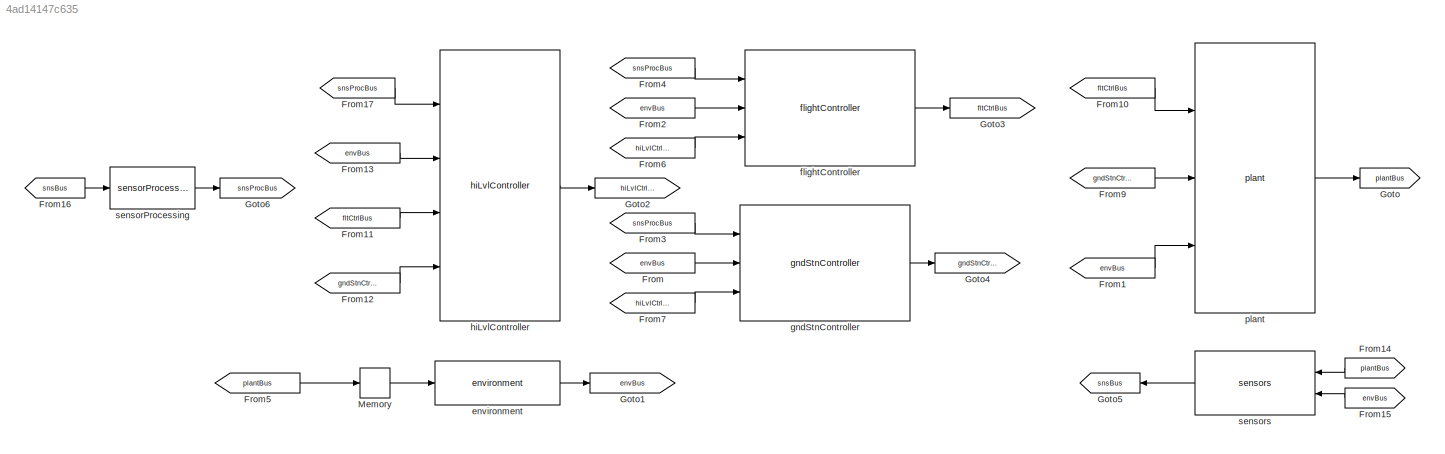
MODEL slx_4ad14147c635
KIND model
CONFIG AbsTol = auto
CONFIG EnableMultiTasking = off
CONFIG FixedStep = auto
CONFIG MaxStep = auto
CONFIG MinStep = auto
CONFIG RelTol = 1e-3
CONFIG SampleTimeConstraint = Unconstrained
CONFIG Solver = ode15s
CONFIG SolverName = ode15s
CONFIG StartTime = 0.0
CONFIG StopTime = duration_s
BLOCK [From] From
  GotoTag = envBus
BLOCK [From] From1
  GotoTag = envBus
BLOCK [From] From10
  GotoTag = fltCtrlBus
BLOCK [From] From11
  GotoTag = fltCtrlBus
BLOCK [From] From12
  GotoTag = gndStnCtrlBus
BLOCK [From] From13
  GotoTag = envBus
BLOCK [From] From14
  GotoTag = plantBus
BLOCK [From] From15
  GotoTag = envBus
BLOCK [From] From16
  GotoTag = snsBus
BLOCK [From] From17
  GotoTag = snsProcBus
BLOCK [From] From2
  GotoTag = envBus
BLOCK [From] From3
  GotoTag = snsProcBus
BLOCK [From] From4
  GotoTag = snsProcBus
BLOCK [From] From5
  GotoTag = plantBus
BLOCK [From] From6
  GotoTag = hiLvlCtrlBus
BLOCK [From] From7
  GotoTag = hiLvlCtrlBus
BLOCK [From] From9
  GotoTag = gndStnCtrlBus
BLOCK [Goto] Goto
  GotoTag = plantBus
BLOCK [Goto] Goto1
  GotoTag = envBus
BLOCK [Goto] Goto2
  GotoTag = hiLvlCtrlBus
BLOCK [Goto] Goto3
  GotoTag = fltCtrlBus
BLOCK [Goto] Goto4
  GotoTag = gndStnCtrlBus
BLOCK [Goto] Goto5
  GotoTag = snsBus
BLOCK [Goto] Goto6
  GotoTag = snsProcBus
BLOCK [Memory] Memory
BLOCK [Reference] environment  REF=environment_cl/environment  (lib defined in slx_47dae840ee41)
  Ports = [1, 1]
  SourceBlock = environment_cl/environment
  SourceType = SubSystem
BLOCK [Reference] flightController  REF=flightController_cl/flightController
  Ports = [3, 1]
  SourceBlock = flightController_cl/flightController
  SourceType = SubSystem
BLOCK [Reference] gndStnController  REF=gndStnController_cl/gndStnController
  Ports = [3, 1]
  SourceBlock = gndStnController_cl/gndStnController
  SourceType = SubSystem
BLOCK [Reference] hiLvlController  REF=hiLvlController_cl/hiLvlController
  Ports = [4, 1]
  SourceBlock = hiLvlController_cl/hiLvlController
  SourceType = SubSystem
BLOCK [Reference] plant  REF=plant_cl/plant  (lib defined in slx_16586b0fd0ad)
  Ports = [3, 1]
  SourceBlock = plant_cl/plant
  SourceType = SubSystem
BLOCK [Reference] sensorProcessing  REF=sensorProcessing_cl/sensorProcessing
  Ports = [1, 1]
  SourceBlock = sensorProcessing_cl/sensorProcessing
  SourceType = SubSystem
BLOCK [Reference] sensors  REF=sensors_cl/sensors
  Ports = [2, 1]
  SourceBlock = sensors_cl/sensors
  SourceType = SubSystem
LINE From10:1 -> plant:1
LINE From11:1 -> hiLvlController:3
LINE From12:1 -> hiLvlController:4
LINE From13:1 -> hiLvlController:2
LINE From14:1 -> sensors:1
LINE From15:1 -> sensors:2
LINE From16:1 -> sensorProcessing:1
LINE From17:1 -> hiLvlController:1
LINE From1:1 -> plant:3
LINE From2:1 -> flightController:2
LINE From3:1 -> gndStnController:1
LINE From4:1 -> flightController:1
LINE From5:1 -> Memory:1
LINE From6:1 -> flightController:3
LINE From7:1 -> gndStnController:3
LINE From9:1 -> plant:2
LINE From:1 -> gndStnController:2
LINE Memory:1 -> environment:1
LINE environment:1 -> Goto1:1
LINE flightController:1 -> Goto3:1
LINE gndStnController:1 -> Goto4:1
LINE hiLvlController:1 -> Goto2:1
LINE plant:1 -> Goto:1
LINE sensorProcessing:1 -> Goto6:1
LINE sensors:1 -> Goto5:1
